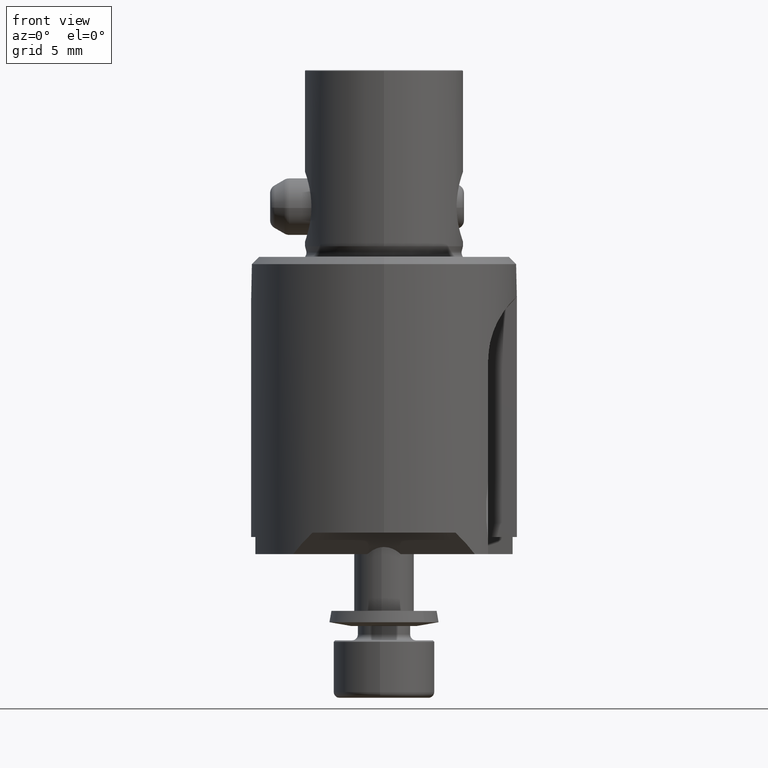
[diagram: clean part render]
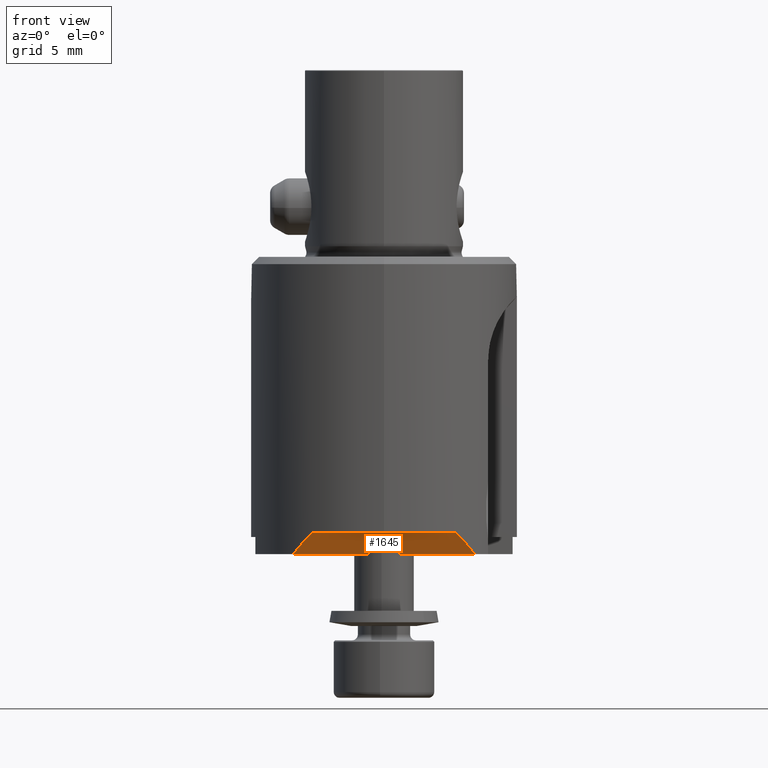
[diagram: same view with one face highlighted and labeled with its STEP entity id]
A machine part, front view. The second image highlights one B-rep face of the part: STEP entity #1645.
In plain terms, the highlighted planar face has unit normal (0, 0.8192, 0.5736).
Its self-contained STEP definition (entity closure, byte-faithful):
#1229=EDGE_CURVE('NONE',#1901,#1867,#3392,.T.);
#1297=EDGE_CURVE('NONE',#2405,#1867,#3470,.T.);
#1349=VERTEX_POINT('NONE',#3530);
#1401=VERTEX_POINT('NONE',#3587);
#1645=ADVANCED_FACE('NONE',(#3864),#3865,.F.);
#1785=VERTEX_POINT('NONE',#4022);
#1867=VERTEX_POINT('NONE',#4112);
#1901=VERTEX_POINT('NONE',#4150);
#2341=EDGE_CURVE('NONE',#1349,#1785,#4645,.T.);
#2405=VERTEX_POINT('NONE',#4716);
#2683=EDGE_CURVE('NONE',#2685,#1901,#5028,.T.);
#2685=VERTEX_POINT('NONE',#5030);
#2785=EDGE_CURVE('NONE',#1401,#1785,#5139,.T.);
#2825=EDGE_CURVE('NONE',#1401,#2685,#5181,.T.);
#3141=EDGE_CURVE('NONE',#2405,#1349,#5527,.T.);
#3392=(B_SPLINE_CURVE(3,(#5834,#5835,#5836,#5837),.UNSPECIFIED.,.F.,.F.)B_SPLINE_CURVE_WITH_KNOTS((4,4),(0.567507775761387,0.752918965012232),.UNSPECIFIED.)RATIONAL_B_SPLINE_CURVE((1.0,0.997137275389066,0.997137275389066,1.0))BOUNDED_CURVE()REPRESENTATION_ITEM('')GEOMETRIC_REPRESENTATION_ITEM()CURVE());
#3470=LINE('',#5951,#5952);
#3530=CARTESIAN_POINT('',(2.57167334302699E-016,-7.1,-20.1997036047195));
#3587=CARTESIAN_POINT('',(6.32488755250512,-6.74968869268545,-20.7));
#3864=FACE_OUTER_BOUND('',#6598,.T.);
#3865=PLANE('',#6599);
#4022=CARTESIAN_POINT('',(1.16128785350089,-6.74968869268545,-20.7));
#4112=CARTESIAN_POINT('',(-6.32488755250512,-6.74968869268545,-20.7));
#4150=CARTESIAN_POINT('',(-4.9721725633771,-7.8,-19.2));
#4645=(B_SPLINE_CURVE(3,(#7827,#7828,#7829,#7830),.UNSPECIFIED.,.F.,.F.)B_SPLINE_CURVE_WITH_KNOTS((4,4),(3.14159265358979,3.72754632196598),.UNSPECIFIED.)RATIONAL_B_SPLINE_CURVE((1.0,0.971592265769409,0.971592265769409,1.0))BOUNDED_CURVE()REPRESENTATION_ITEM('')GEOMETRIC_REPRESENTATION_ITEM()CURVE());
#4716=CARTESIAN_POINT('',(-1.16128785350089,-6.74968869268545,-20.7));
#5028=LINE('',#8445,#8446);
#5030=CARTESIAN_POINT('',(4.9721725633771,-7.8,-19.2));
#5139=LINE('',#8620,#8621);
#5181=(B_SPLINE_CURVE(3,(#8702,#8703,#8704,#8705),.UNSPECIFIED.,.F.,.F.)B_SPLINE_CURVE_WITH_KNOTS((4,4),(5.53026634216735,5.7156775314182),.UNSPECIFIED.)RATIONAL_B_SPLINE_CURVE((1.0,0.997137275389066,0.997137275389066,1.0))BOUNDED_CURVE()REPRESENTATION_ITEM('')GEOMETRIC_REPRESENTATION_ITEM()CURVE());
#5527=(B_SPLINE_CURVE(3,(#9217,#9218,#9219,#9220),.UNSPECIFIED.,.F.,.F.)B_SPLINE_CURVE_WITH_KNOTS((4,4),(2.55563898521361,3.14159265358979),.UNSPECIFIED.)RATIONAL_B_SPLINE_CURVE((1.0,0.971592265769409,0.971592265769409,1.0))BOUNDED_CURVE()REPRESENTATION_ITEM('')GEOMETRIC_REPRESENTATION_ITEM()CURVE());
#5834=CARTESIAN_POINT('',(-4.9721725633771,-7.8,-19.2));
#5835=CARTESIAN_POINT('',(-5.45493345364941,-7.49226019829699,-19.6394979843974));
#5836=CARTESIAN_POINT('',(-5.90713297271771,-7.14115130111104,-20.1409334560629));
#5837=CARTESIAN_POINT('',(-6.32488755250512,-6.74968869268545,-20.7));
#5951=CARTESIAN_POINT('',(9.25,-6.74968869268545,-20.7));
#5952=VECTOR('',#9641,1000.0);
#6598=EDGE_LOOP('',(#10125,#10126,#10127,#10128,#10129,#10130,#10131));
#6599=AXIS2_PLACEMENT_3D('',#10132,#10133,#10134);
#7827=CARTESIAN_POINT('',(2.57167334302699E-016,-7.1,-20.1997036047195));
#7828=CARTESIAN_POINT('',(0.416146665727353,-7.1,-20.1997036047195));
#7829=CARTESIAN_POINT('',(0.814560655633313,-6.97981539182072,-20.3713450133318));
#7830=CARTESIAN_POINT('',(1.16128785350089,-6.74968869268545,-20.7));
#8445=CARTESIAN_POINT('',(9.25,-7.8,-19.2));
#8446=VECTOR('',#11620,1000.0);
#8620=CARTESIAN_POINT('',(9.25,-6.74968869268545,-20.7));
#8621=VECTOR('',#11741,1000.0);
#8702=CARTESIAN_POINT('',(6.32488755250512,-6.74968869268545,-20.7));
#8703=CARTESIAN_POINT('',(5.90713297271771,-7.14115130111104,-20.1409334560629));
#8704=CARTESIAN_POINT('',(5.45493345364941,-7.49226019829699,-19.6394979843974));
#8705=CARTESIAN_POINT('',(4.9721725633771,-7.8,-19.2));
#9217=CARTESIAN_POINT('',(-1.16128785350089,-6.74968869268545,-20.7));
#9218=CARTESIAN_POINT('',(-0.814560655633313,-6.97981539182072,-20.3713450133318));
#9219=CARTESIAN_POINT('',(-0.416146665727354,-7.1,-20.1997036047195));
#9220=CARTESIAN_POINT('',(2.57167334302699E-016,-7.1,-20.1997036047195));
#9641=DIRECTION('',(-1.0,0.0,0.0));
#10125=ORIENTED_EDGE('',*,*,#1297,.F.);
#10126=ORIENTED_EDGE('',*,*,#3141,.T.);
#10127=ORIENTED_EDGE('',*,*,#2341,.T.);
#10128=ORIENTED_EDGE('',*,*,#2785,.F.);
#10129=ORIENTED_EDGE('',*,*,#2825,.T.);
#10130=ORIENTED_EDGE('',*,*,#2683,.T.);
#10131=ORIENTED_EDGE('',*,*,#1229,.T.);
#10132=CARTESIAN_POINT('',(9.25,-7.8,-19.2));
#10133=DIRECTION('',(0.0,0.819152044288993,0.573576436351044));
#10134=DIRECTION('',(-1.0,0.0,0.0));
#11620=DIRECTION('',(-1.0,0.0,0.0));
#11741=DIRECTION('',(-1.0,0.0,0.0));